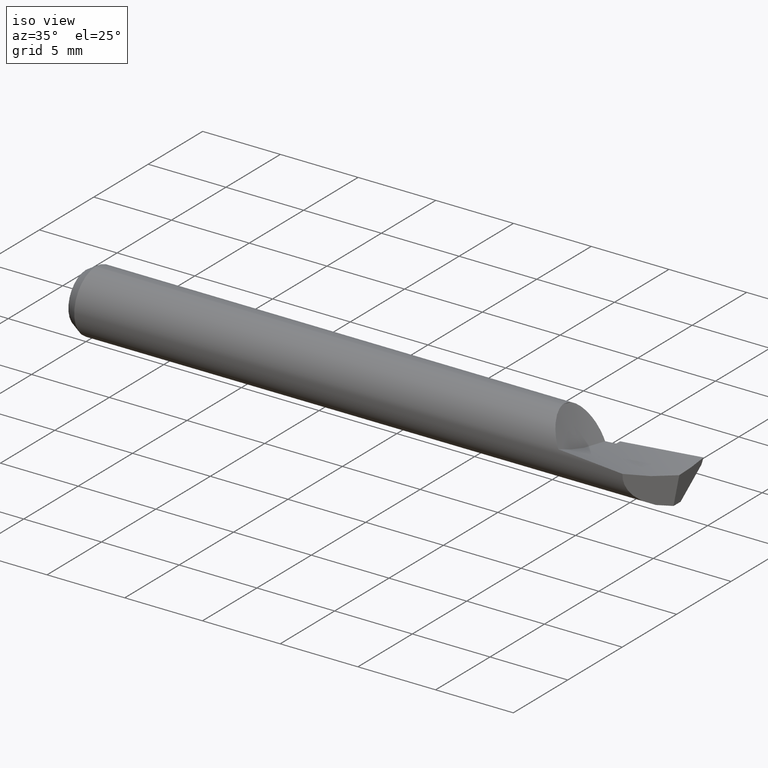
[diagram: clean part render]
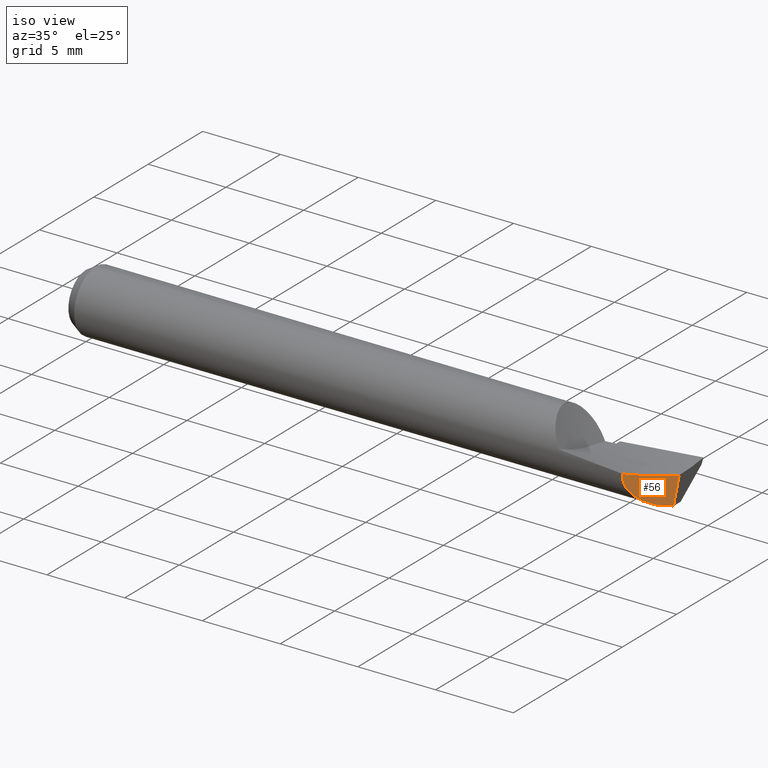
[diagram: same view with one face highlighted and labeled with its STEP entity id]
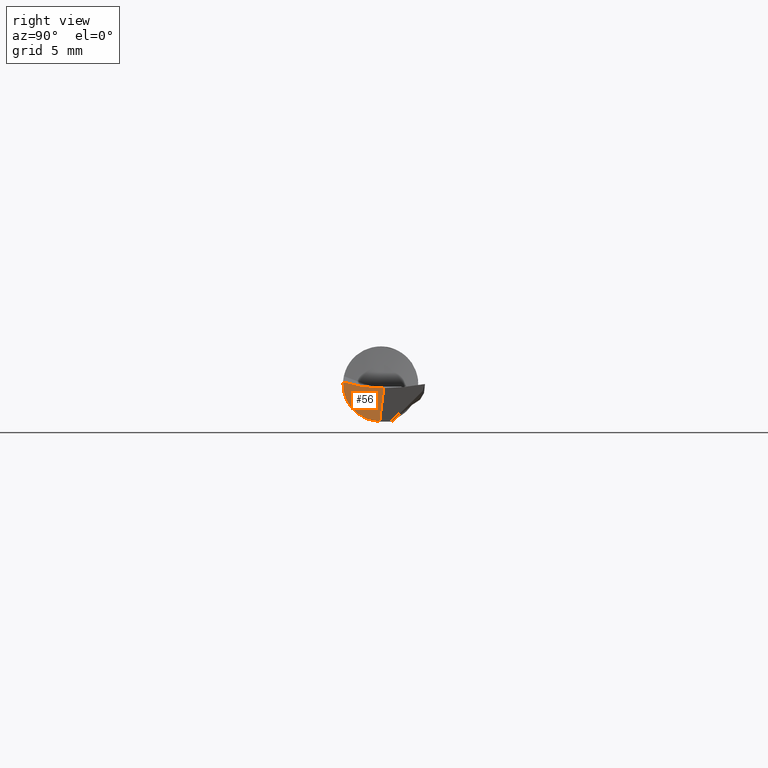
[diagram: same view with one face highlighted and labeled with its STEP entity id]
A machine part, iso view. The second image highlights one B-rep face of the part: STEP entity #56.
A second angle (right view) of the same face is appended — the face is thin or edge-on in the first view.
In plain terms, the highlighted planar face has unit normal (-0.7071, 0.7071, 0).
Its self-contained STEP definition (entity closure, byte-faithful):
#6 = CARTESIAN_POINT ( 'NONE',  ( 1.413707719425090215, -0.07789228057490950319, 0.004097880774202420848 ) ) ;
#44 = CARTESIAN_POINT ( 'NONE',  ( 1.498210553536294398, 0.006610553536293644825, -0.008504524376991735857 ) ) ;
#54 = EDGE_CURVE ( 'NONE', #179, #660, #390, .T. ) ;
#56 = ADVANCED_FACE ( 'NONE', ( #374 ), #61, .F. ) ;
#61 = PLANE ( 'NONE',  #443 ) ;
#73 = LINE ( 'NONE', #271, #207 ) ;
#92 = ORIENTED_EDGE ( 'NONE', *, *, #54, .F. ) ;
#108 = CARTESIAN_POINT ( 'NONE',  ( 1.498210553536294398, 0.006610553536293644825, -0.008504524376991735857 ) ) ;
#109 = EDGE_CURVE ( 'NONE', #307, #660, #543, .T. ) ;
#125 = CARTESIAN_POINT ( 'NONE',  ( 1.489605292493080491, -0.001994707506919228893, -0.07797449032832366733 ) ) ;
#153 = CARTESIAN_POINT ( 'NONE',  ( 1.413707719425090215, -0.07789228057490950319, 0.004097880774202420848 ) ) ;
#158 = EDGE_LOOP ( 'NONE', ( #92, #232, #202 ) ) ;
#179 = VERTEX_POINT ( 'NONE', #125 ) ;
#202 = ORIENTED_EDGE ( 'NONE', *, *, #109, .T. ) ;
#207 = VECTOR ( 'NONE', #273, 39.37007874015748854 ) ;
#213 = CARTESIAN_POINT ( 'NONE',  ( 1.469695330231047814, -0.02190466976895240683, -0.009013655983420583440 ) ) ;
#232 = ORIENTED_EDGE ( 'NONE', *, *, #469, .T. ) ;
#271 = CARTESIAN_POINT ( 'NONE',  ( 1.484275291761521176, -0.007324708238478513066, -0.1210033964222349545 ) ) ;
#273 = DIRECTION ( 'NONE',  ( 0.1220122463319277123, 0.1220122463319270739, 0.9850005195379716305 ) ) ;
#307 = VERTEX_POINT ( 'NONE', #44 ) ;
#317 = CARTESIAN_POINT ( 'NONE',  ( 1.441526390384526568, -0.05007360961547365624, -0.004830854321361215294 ) ) ;
#320 = CARTESIAN_POINT ( 'NONE',  ( 1.399495456089608680, -0.09210454391039075983, -0.09999999999999999167 ) ) ;
#322 = DIRECTION ( 'NONE',  ( -0.7071067811865493491, -0.7071067811865457964, 0.000000000000000000 ) ) ;
#369 = CARTESIAN_POINT ( 'NONE',  ( 1.489605292493080491, -0.001994707506919228893, -0.07797449032832366733 ) ) ;
#374 = FACE_OUTER_BOUND ( 'NONE', #158, .T. ) ;
#390 =( BOUNDED_CURVE ( )  B_SPLINE_CURVE ( 3, ( #369, #519, #571, #6 ),
 .UNSPECIFIED., .F., .T. ) 
 B_SPLINE_CURVE_WITH_KNOTS ( ( 4, 4 ),
 ( 4.737964941792221829, 6.335746438371414158 ),
 .UNSPECIFIED. ) 
 CURVE ( )  GEOMETRIC_REPRESENTATION_ITEM ( )  RATIONAL_B_SPLINE_CURVE ( ( 1.000000000000000000, 0.7983346726847653230, 0.7983346726847653230, 1.000000000000000000 ) ) 
 REPRESENTATION_ITEM ( '' )  );
#443 = AXIS2_PLACEMENT_3D ( 'NONE', #320, #472, #322 ) ;
#469 = EDGE_CURVE ( 'NONE', #179, #307, #73, .T. ) ;
#472 = DIRECTION ( 'NONE',  ( -0.7071067811865457964, 0.7071067811865493491, 0.000000000000000000 ) ) ;
#519 = CARTESIAN_POINT ( 'NONE',  ( 1.442945512165095812, -0.04865448783490416290, -0.07678086131325036201 ) ) ;
#543 = B_SPLINE_CURVE_WITH_KNOTS ( 'NONE', 3,
 ( #108, #213, #317, #623 ),
 .UNSPECIFIED., .F., .F.,
 ( 4, 4 ),
 ( 6.383070229300644085E-05, 0.003116088797213034233 ),
 .UNSPECIFIED. ) ;
#571 = CARTESIAN_POINT ( 'NONE',  ( 1.411255555699114650, -0.08034444430088515110, -0.04251270540042573209 ) ) ;
#623 = CARTESIAN_POINT ( 'NONE',  ( 1.413707719425090215, -0.07789228057490950319, 0.004097880774202420848 ) ) ;
#660 = VERTEX_POINT ( 'NONE', #153 ) ;